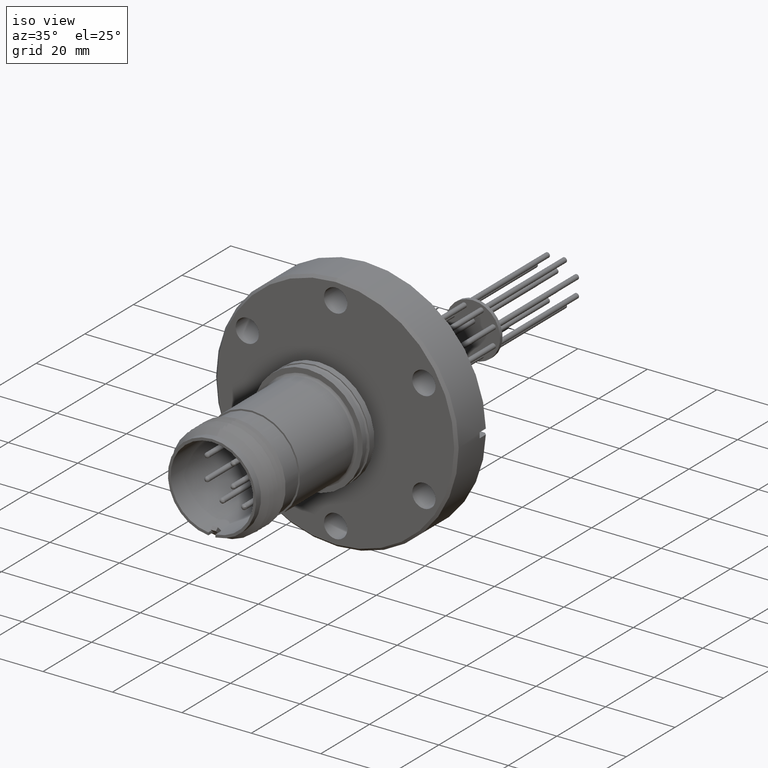
[diagram: clean part render]
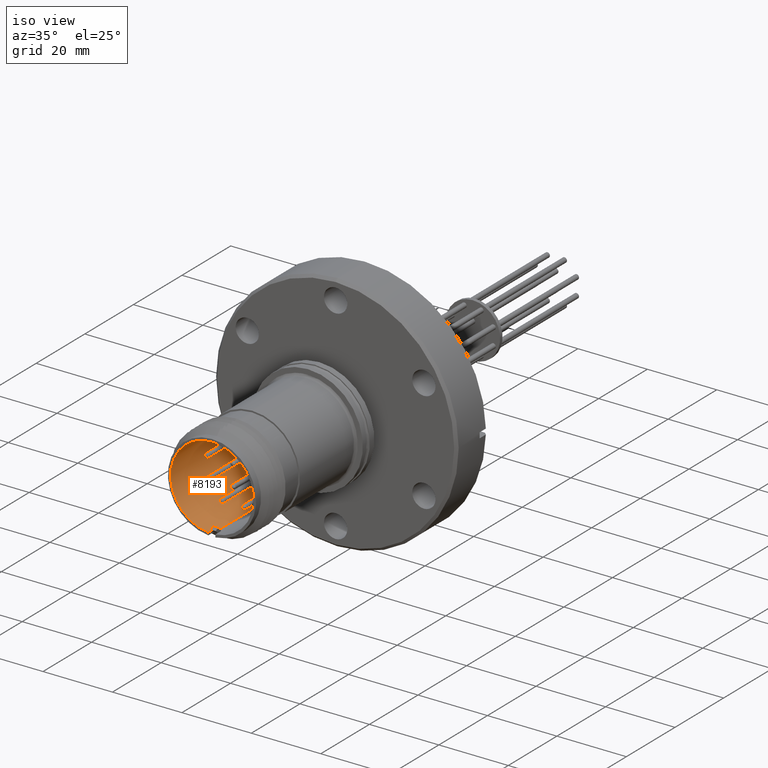
[diagram: same view with one face highlighted and labeled with its STEP entity id]
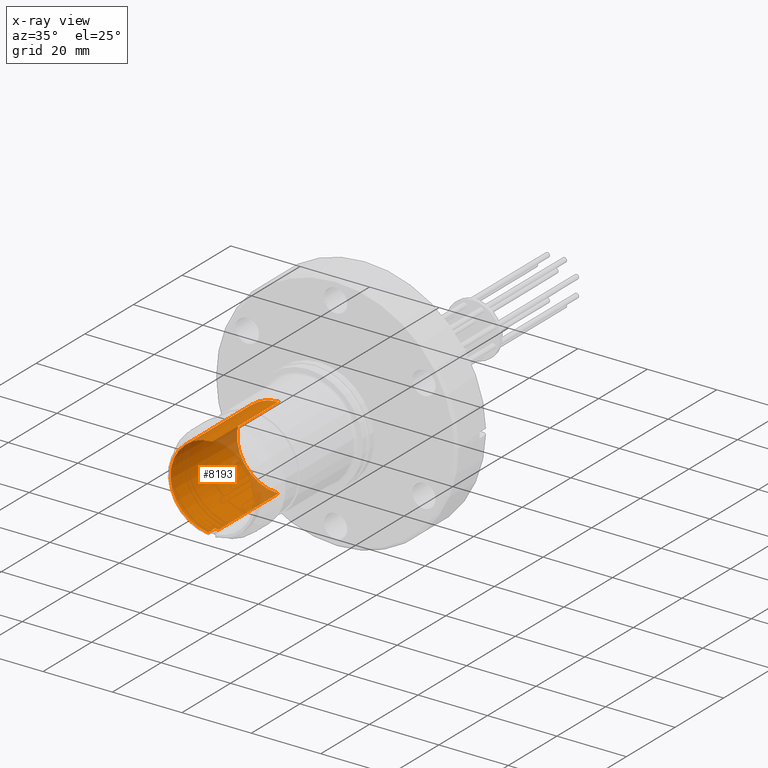
[diagram: x-ray of the same camera — body ghosted, the highlighted face saturated]
A machine part, iso view. The second image highlights one B-rep face of the part: STEP entity #8193.
The next image is the same camera in x-ray: the body ghosted, the highlighted face saturated — about 13% of this face is hidden behind the body in this view.
In plain terms, the highlighted cylindrical surface (partial cylindrical patch) has radius 11.938 mm, axis along (-0, 1, 0).
Its self-contained STEP definition (entity closure, byte-faithful):
#601 = FACE_OUTER_BOUND ( 'NONE', #6474, .T. ) ;
#610 = CYLINDRICAL_SURFACE ( 'NONE', #9040, 0.4700000000000006400 ) ;
#1032 = LINE ( 'NONE', #2683, #1036 ) ;
#1035 = CIRCLE ( 'NONE', #2235, 0.4700000000000006400 ) ;
#1036 = VECTOR ( 'NONE', #2660, 39.37007874015748100 ) ;
#1037 = LINE ( 'NONE', #2656, #1040 ) ;
#1038 = CIRCLE ( 'NONE', #2236, 0.4700000000000006400 ) ;
#1039 = LINE ( 'NONE', #2644, #1042 ) ;
#1040 = VECTOR ( 'NONE', #2658, 39.37007874015748100 ) ;
#1042 = VECTOR ( 'NONE', #2647, 39.37007874015748100 ) ;
#1651 = VERTEX_POINT ( 'NONE', #12782 ) ;
#1713 = VERTEX_POINT ( 'NONE', #12697 ) ;
#1720 = VERTEX_POINT ( 'NONE', #12686 ) ;
#2130 = EDGE_CURVE ( 'NONE', #9579, #9585, #7892, .T. ) ;
#2131 = EDGE_CURVE ( 'NONE', #9585, #1651, #1032, .T. ) ;
#2132 = EDGE_CURVE ( 'NONE', #1651, #9590, #1035, .T. ) ;
#2133 = EDGE_CURVE ( 'NONE', #9590, #1720, #1037, .T. ) ;
#2134 = EDGE_CURVE ( 'NONE', #1720, #1713, #1038, .T. ) ;
#2135 = EDGE_CURVE ( 'NONE', #9583, #1713, #1039, .T. ) ;
#2136 = EDGE_CURVE ( 'NONE', #9583, #9579, #7893, .T. ) ;
#2235 = AXIS2_PLACEMENT_3D ( 'NONE', #2650, #2649, #2648 ) ;
#2236 = AXIS2_PLACEMENT_3D ( 'NONE', #2643, #2642, #2640 ) ;
#2635 = CARTESIAN_POINT ( 'NONE',  ( -0.03165635869553068400, -0.6433906930691091200, -0.4689326976807445300 ) ) ;
#2636 = CARTESIAN_POINT ( 'NONE',  ( -0.02111822983583210700, -0.6440648705520497500, -0.4696440978215582500 ) ) ;
#2639 = CARTESIAN_POINT ( 'NONE',  ( 1.678396022650105400E-016, -0.6443461858329225800, -0.4700000000000005300 ) ) ;
#2640 = DIRECTION ( 'NONE',  ( 0.0000000000000000000, -2.906221269855595400E-016, 1.000000000000000000 ) ) ;
#2642 = DIRECTION ( 'NONE',  ( 8.430459546910140800E-017, -1.000000000000000000, -2.529717326121717100E-016 ) ) ;
#2643 = CARTESIAN_POINT ( 'NONE',  ( 2.850599221822591700E-017, 0.3256508829132344600, 4.095981430571139600E-016 ) ) ;
#2644 = CARTESIAN_POINT ( 'NONE',  ( 4.048434959952403800E-017, 0.8663099291372706700, -0.4700000000000000800 ) ) ;
#2646 = CARTESIAN_POINT ( 'NONE',  ( -0.01056211389940277200, -0.6443834887635830900, -0.4700000000000005800 ) ) ;
#2647 = DIRECTION ( 'NONE',  ( -8.430459546910140800E-017, 1.000000000000000000, 2.529717326121717100E-016 ) ) ;
#2648 = DIRECTION ( 'NONE',  ( 0.0000000000000000000, -2.906221269855595400E-016, 1.000000000000000000 ) ) ;
#2649 = DIRECTION ( 'NONE',  ( -8.430459546910140800E-017, 1.000000000000000000, 2.529717326121717100E-016 ) ) ;
#2650 = CARTESIAN_POINT ( 'NONE',  ( 1.191334323475099300E-016, -0.7493491170867656600, 1.376535304990293700E-016 ) ) ;
#2656 = CARTESIAN_POINT ( 'NONE',  ( -1.707404996040164500E-017, 0.8663099291372704500, 0.4700000000000011900 ) ) ;
#2658 = DIRECTION ( 'NONE',  ( -8.430459546910140800E-017, 1.000000000000000000, 2.529717326121717100E-016 ) ) ;
#2660 = DIRECTION ( 'NONE',  ( 8.430459546910140800E-017, -1.000000000000000000, -2.529717326121717100E-016 ) ) ;
#2665 = CARTESIAN_POINT ( 'NONE',  ( -0.04165365881497330000, -0.6426438960454895500, -0.4681505876396252500 ) ) ;
#2666 = CARTESIAN_POINT ( 'NONE',  ( -0.03165635869553068400, -0.6433906930691091200, -0.4689326976807445300 ) ) ;
#2671 = CARTESIAN_POINT ( 'NONE',  ( -0.03499151012523465200, -0.6431773265382915200, -0.4687075507663048800 ) ) ;
#2672 = CARTESIAN_POINT ( 'NONE',  ( -0.03832406992214206600, -0.6429283847532464300, -0.4684468375288656800 ) ) ;
#2683 = CARTESIAN_POINT ( 'NONE',  ( -0.04165365881497337700, 0.8663099291372706700, -0.4681505876396246900 ) ) ;
#4335 = CARTESIAN_POINT ( 'NONE',  ( -0.03165635869553068400, -0.6433906930691091200, -0.4689326976807445300 ) ) ;
#4339 = CARTESIAN_POINT ( 'NONE',  ( 1.678396022650105400E-016, -0.6443461858329225800, -0.4700000000000005300 ) ) ;
#4341 = CARTESIAN_POINT ( 'NONE',  ( -0.04165365881497330000, -0.6426438960454895500, -0.4681505876396252500 ) ) ;
#4346 = CARTESIAN_POINT ( 'NONE',  ( 7.381971228286794600E-017, -0.7493491170867657700, 0.4700000000000008100 ) ) ;
#5437 = CARTESIAN_POINT ( 'NONE',  ( -1.707404996040164500E-017, 0.8663099291372705600, 5.463695987328526400E-016 ) ) ;
#5439 = DIRECTION ( 'NONE',  ( -8.430459546910140800E-017, 1.000000000000000000, 2.529717326121717100E-016 ) ) ;
#5441 = DIRECTION ( 'NONE',  ( 0.0000000000000000000, -2.906221269855595400E-016, 1.000000000000000000 ) ) ;
#6474 = EDGE_LOOP ( 'NONE', ( #7144, #6730, #7265, #7250, #7205, #6735, #6732 ) ) ;
#6730 = ORIENTED_EDGE ( 'NONE', *, *, #2135, .T. ) ;
#6732 = ORIENTED_EDGE ( 'NONE', *, *, #2130, .F. ) ;
#6735 = ORIENTED_EDGE ( 'NONE', *, *, #2131, .F. ) ;
#7144 = ORIENTED_EDGE ( 'NONE', *, *, #2136, .F. ) ;
#7205 = ORIENTED_EDGE ( 'NONE', *, *, #2132, .F. ) ;
#7250 = ORIENTED_EDGE ( 'NONE', *, *, #2133, .F. ) ;
#7265 = ORIENTED_EDGE ( 'NONE', *, *, #2134, .F. ) ;
#7892 =( BOUNDED_CURVE ( )  B_SPLINE_CURVE ( 3, ( #2666, #2671, #2672, #2665 ),
 .UNSPECIFIED., .F., .T. ) 
 B_SPLINE_CURVE_WITH_KNOTS ( ( 4, 4 ),
 ( 3.205465863479719500, 3.226802111842444400 ),
 .UNSPECIFIED. ) 
 CURVE ( )  GEOMETRIC_REPRESENTATION_ITEM ( )  RATIONAL_B_SPLINE_CURVE ( ( 1.000000000000000000, 0.9999620640686061000, 0.9999620640686061000, 1.000000000000000000 ) ) 
 REPRESENTATION_ITEM ( '' )  );
#7893 =( BOUNDED_CURVE ( )  B_SPLINE_CURVE ( 3, ( #2639, #2646, #2636, #2635 ),
 .UNSPECIFIED., .F., .F. ) 
 B_SPLINE_CURVE_WITH_KNOTS ( ( 4, 4 ),
 ( 3.138060878741935100, 3.205465863479719500 ),
 .UNSPECIFIED. ) 
 CURVE ( )  GEOMETRIC_REPRESENTATION_ITEM ( )  RATIONAL_B_SPLINE_CURVE ( ( 1.000000000000000000, 0.9996214165061673200, 0.9996214165061673200, 1.000000000000000000 ) ) 
 REPRESENTATION_ITEM ( '' )  );
#8193 = ADVANCED_FACE ( 'NONE', ( #601 ), #610, .F. ) ;
#9040 = AXIS2_PLACEMENT_3D ( 'NONE', #5437, #5439, #5441 ) ;
#9579 = VERTEX_POINT ( 'NONE', #4335 ) ;
#9583 = VERTEX_POINT ( 'NONE', #4339 ) ;
#9585 = VERTEX_POINT ( 'NONE', #4341 ) ;
#9590 = VERTEX_POINT ( 'NONE', #4346 ) ;
#12686 = CARTESIAN_POINT ( 'NONE',  ( 2.850599221822591700E-017, 0.3256508829132343000, 0.4700000000000010800 ) ) ;
#12697 = CARTESIAN_POINT ( 'NONE',  ( 1.313781118427935900E-016, 0.3256508829132345700, -0.4700000000000002500 ) ) ;
#12782 = CARTESIAN_POINT ( 'NONE',  ( -0.04165365881497332100, -0.7493491170867654400, -0.4681505876396250300 ) ) ;